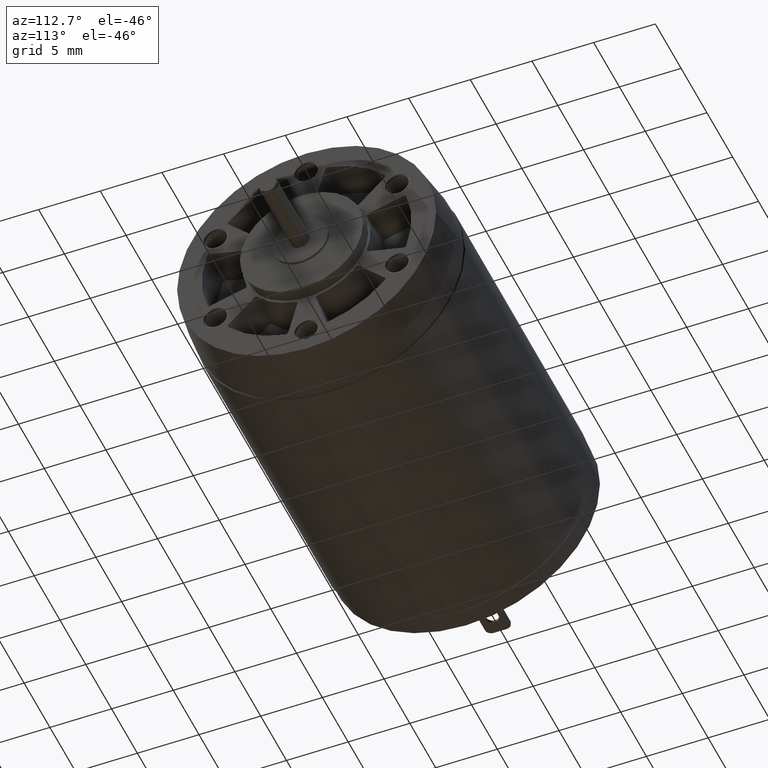
[diagram: clean part render]
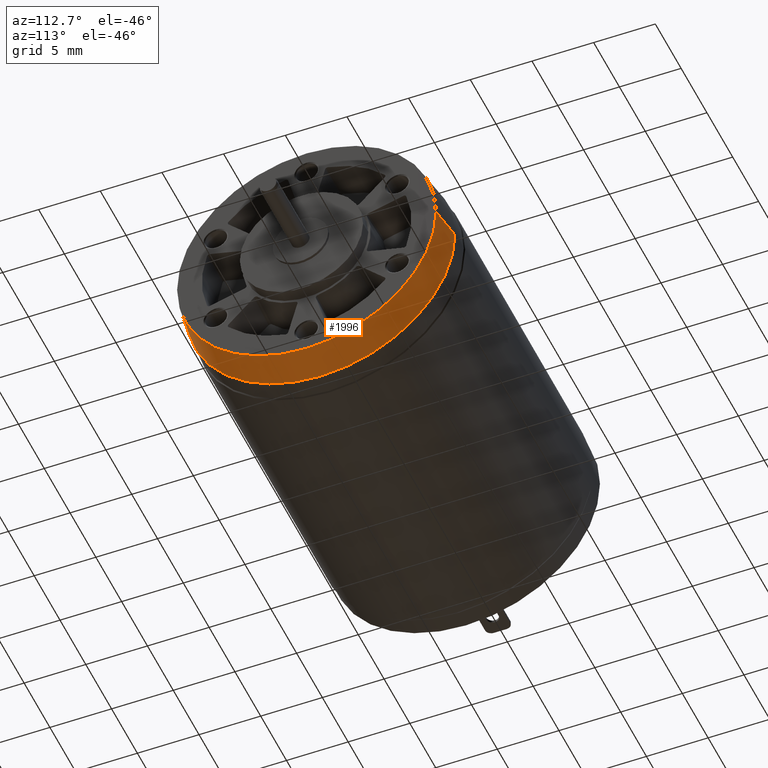
[diagram: same view with one face highlighted and labeled with its STEP entity id]
A machine part, auxiliary view. The second image highlights one B-rep face of the part: STEP entity #1996.
In plain terms, the highlighted conical surface has half-angle 8 deg.
Its self-contained STEP definition (entity closure, byte-faithful):
#79=CARTESIAN_POINT('',(1.077665827934E2,2.428669869102E0,-3.989812658115E0));
#80=DIRECTION('',(-1.E0,0.E0,0.E0));
#81=DIRECTION('',(0.E0,1.E0,0.E0));
#82=AXIS2_PLACEMENT_3D('',#79,#80,#81);
#279=DIRECTION('',(-9.902680687445E-1,-1.391731009392E-1,-5.075492830244E-10));
#280=VECTOR('',#279,2.749448509970E0);
#281=CARTESIAN_POINT('',(1.077665827935E2,-8.071330130885E0,-3.989812658115E0));
#282=LINE('',#281,#280);
#283=DIRECTION('',(9.902680687445E-1,-1.391731009392E-1,1.096729974553E-9));
#284=VECTOR('',#283,2.749448509890E0);
#285=CARTESIAN_POINT('',(1.050438917274E2,1.331131914409E1,-3.989812662209E0));
#286=LINE('',#285,#284);
#292=CARTESIAN_POINT('',(1.050438917274E2,2.428669869102E0,-3.989812658115E0));
#293=DIRECTION('',(1.E0,0.E0,0.E0));
#294=DIRECTION('',(0.E0,-1.E0,-3.846897914746E-10));
#295=AXIS2_PLACEMENT_3D('',#292,#293,#294);
#297=CARTESIAN_POINT('',(1.050438917274E2,2.428669869102E0,-3.989812658115E0));
#298=DIRECTION('',(1.E0,0.E0,0.E0));
#299=DIRECTION('',(0.E0,3.846897506675E-10,-1.E0));
#300=AXIS2_PLACEMENT_3D('',#297,#298,#299);
#1465=CARTESIAN_POINT('',(1.077665827934E2,1.292866986910E1,-3.989812658115E0));
#1466=CARTESIAN_POINT('',(1.077665827934E2,-8.071330130895E0,
-3.989812658115E0));
#1467=VERTEX_POINT('',#1465);
#1468=VERTEX_POINT('',#1466);
#1569=CARTESIAN_POINT('',(1.050438917274E2,1.331131914409E1,-3.989812662209E0));
#1570=VERTEX_POINT('',#1569);
#1571=CARTESIAN_POINT('',(1.050438917274E2,2.428669873288E0,-1.487246193311E1));
#1572=VERTEX_POINT('',#1571);
#1573=CARTESIAN_POINT('',(1.050438917274E2,-8.453979405890E0,
-3.989812659510E0));
#1574=VERTEX_POINT('',#1573);
#1980=CARTESIAN_POINT('',(1.064052372605E2,2.428669869102E0,-3.989812658115E0));
#1981=DIRECTION('',(-1.E0,0.E0,0.E0));
#1982=DIRECTION('',(0.E0,-1.E0,0.E0));
#1983=AXIS2_PLACEMENT_3D('',#1980,#1981,#1982);
#1984=CONICAL_SURFACE('',#1983,1.069132463748E1,7.999999998752E0);
#1986=ORIENTED_EDGE('',*,*,#1985,.F.);
#1988=ORIENTED_EDGE('',*,*,#1987,.F.);
#1990=ORIENTED_EDGE('',*,*,#1989,.F.);
#1992=ORIENTED_EDGE('',*,*,#1991,.F.);
#1993=ORIENTED_EDGE('',*,*,#1827,.F.);
#1994=EDGE_LOOP('',(#1986,#1988,#1990,#1992,#1993));
#1995=FACE_OUTER_BOUND('',#1994,.F.);
#1996=ADVANCED_FACE('',(#1995),#1984,.T.);
#83=CIRCLE('',#82,1.05E1);
#296=CIRCLE('',#295,1.088264927500E1);
#301=CIRCLE('',#300,1.088264927500E1);
#1827=EDGE_CURVE('',#1467,#1468,#83,.T.);
#1985=EDGE_CURVE('',#1570,#1467,#286,.T.);
#1987=EDGE_CURVE('',#1572,#1570,#301,.T.);
#1989=EDGE_CURVE('',#1574,#1572,#296,.T.);
#1991=EDGE_CURVE('',#1468,#1574,#282,.T.);